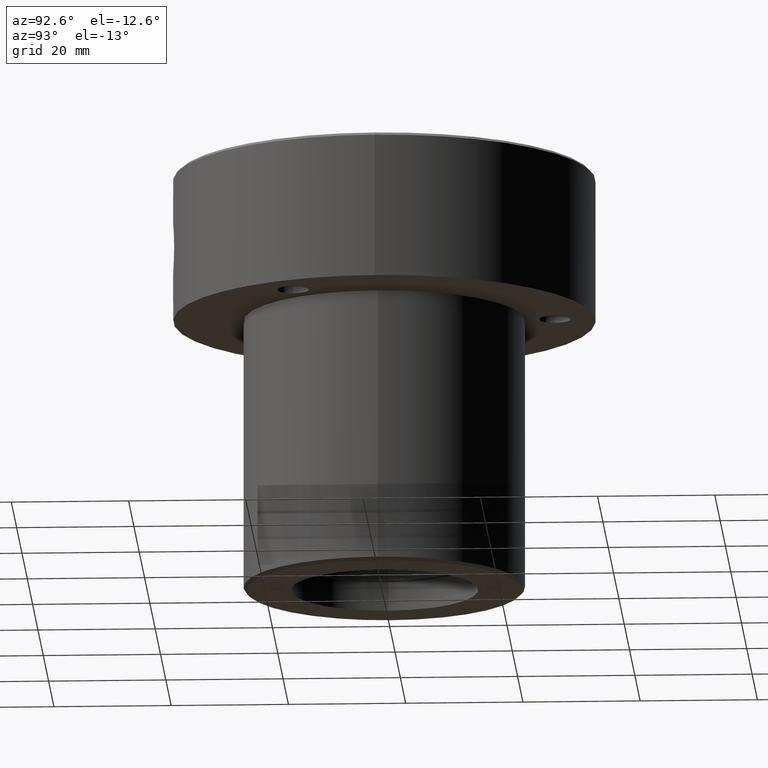
[diagram: clean part render]
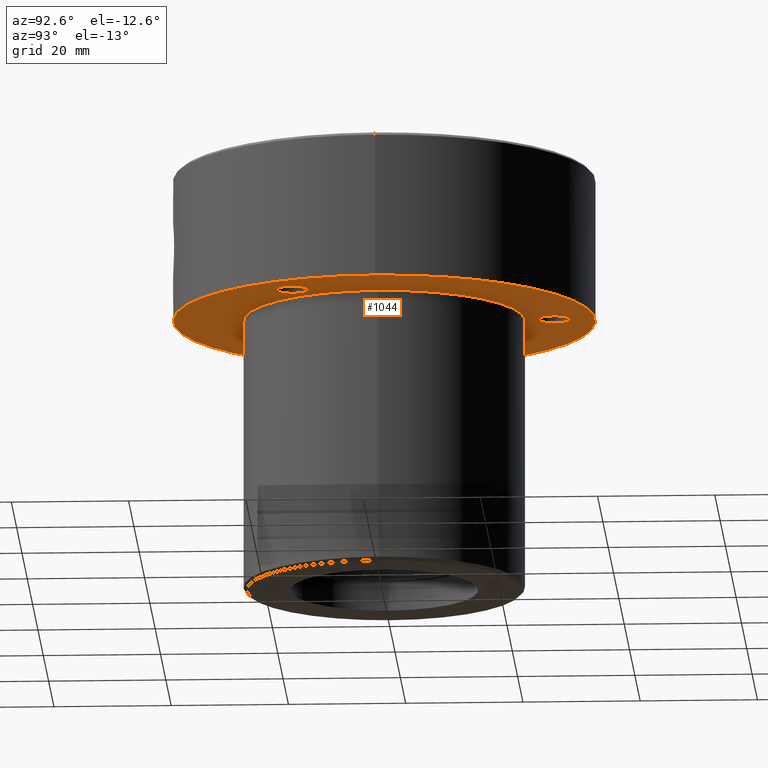
[diagram: same view with one face highlighted and labeled with its STEP entity id]
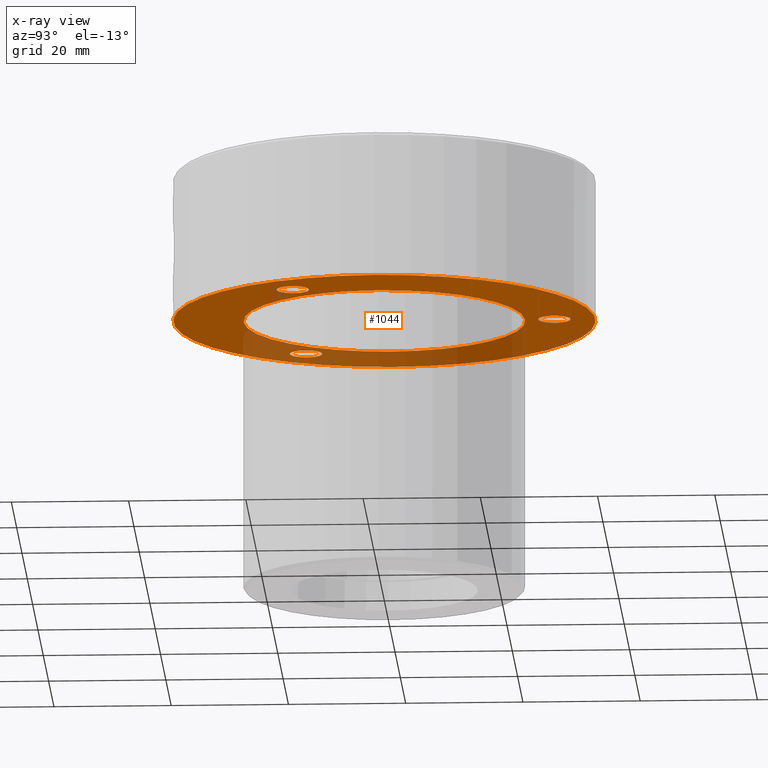
[diagram: x-ray of the same camera — body ghosted, the highlighted face saturated]
A machine part, auxiliary view. The second image highlights one B-rep face of the part: STEP entity #1044.
The next image is the same camera in x-ray: the body ghosted, the highlighted face saturated — about 30% of this face is hidden behind the body in this view.
In plain terms, the highlighted planar face has unit normal (0, 0, -1).
Its self-contained STEP definition (entity closure, byte-faithful):
#20 = EDGE_CURVE ( 'NONE', #541, #1099, #1016, .T. ) ;
#24 = DIRECTION ( 'NONE',  ( 0.000000000000000000, 0.000000000000000000, -1.000000000000000000 ) ) ;
#31 = FACE_OUTER_BOUND ( 'NONE', #257, .T. ) ;
#35 = EDGE_CURVE ( 'NONE', #1237, #1204, #174, .T. ) ;
#37 = DIRECTION ( 'NONE',  ( -0.000000000000000000, -0.000000000000000000, 1.000000000000000000 ) ) ;
#46 = ORIENTED_EDGE ( 'NONE', *, *, #380, .F. ) ;
#63 = DIRECTION ( 'NONE',  ( -1.000000000000000000, 0.000000000000000000, 0.000000000000000000 ) ) ;
#74 = CARTESIAN_POINT ( 'NONE',  ( -22.36473670974875461, -14.49999999999994316, -24.99999999999999289 ) ) ;
#87 = CIRCLE ( 'NONE', #206, 2.749999999999992006 ) ;
#100 = VERTEX_POINT ( 'NONE', #156 ) ;
#110 = FACE_BOUND ( 'NONE', #558, .T. ) ;
#121 = CARTESIAN_POINT ( 'NONE',  ( 0.000000000000000000, 0.000000000000000000, -24.99999999999999289 ) ) ;
#122 = FACE_BOUND ( 'NONE', #272, .T. ) ;
#147 = VERTEX_POINT ( 'NONE', #246 ) ;
#154 = EDGE_CURVE ( 'NONE', #1226, #1217, #291, .T. ) ;
#156 = CARTESIAN_POINT ( 'NONE',  ( -2.749999999999993783, 29.00000000000000000, -24.99999999999999289 ) ) ;
#160 = ORIENTED_EDGE ( 'NONE', *, *, #35, .F. ) ;
#174 = CIRCLE ( 'NONE', #637, 2.749999999999995559 ) ;
#181 = ORIENTED_EDGE ( 'NONE', *, *, #354, .F. ) ;
#203 = CARTESIAN_POINT ( 'NONE',  ( 27.86473670974864802, -14.50000000000011013, -24.99999999999999289 ) ) ;
#206 = AXIS2_PLACEMENT_3D ( 'NONE', #491, #487, #384 ) ;
#213 = FACE_BOUND ( 'NONE', #344, .T. ) ;
#217 = DIRECTION ( 'NONE',  ( -0.000000000000000000, -0.000000000000000000, 1.000000000000000000 ) ) ;
#229 = EDGE_CURVE ( 'NONE', #100, #147, #1013, .T. ) ;
#244 = CARTESIAN_POINT ( 'NONE',  ( -25.11473670974875105, -14.49999999999994316, -24.99999999999999289 ) ) ;
#246 = CARTESIAN_POINT ( 'NONE',  ( 2.749999999999993783, 29.00000000000000000, -24.99999999999999289 ) ) ;
#257 = EDGE_LOOP ( 'NONE', ( #422, #1025 ) ) ;
#266 = DIRECTION ( 'NONE',  ( 1.000000000000000000, 0.000000000000000000, 0.000000000000000000 ) ) ;
#272 = EDGE_LOOP ( 'NONE', ( #363, #455 ) ) ;
#291 = CIRCLE ( 'NONE', #986, 2.749999999999992006 ) ;
#313 = CARTESIAN_POINT ( 'NONE',  ( -27.86473670974874750, -14.49999999999994316, -24.99999999999999289 ) ) ;
#328 = CIRCLE ( 'NONE', #1054, 24.00000000000000000 ) ;
#344 = EDGE_LOOP ( 'NONE', ( #662, #850 ) ) ;
#347 = EDGE_CURVE ( 'NONE', #1217, #1226, #87, .T. ) ;
#354 = EDGE_CURVE ( 'NONE', #147, #100, #633, .T. ) ;
#363 = ORIENTED_EDGE ( 'NONE', *, *, #406, .T. ) ;
#373 = CIRCLE ( 'NONE', #613, 24.00000000000000000 ) ;
#380 = EDGE_CURVE ( 'NONE', #1204, #1237, #498, .T. ) ;
#384 = DIRECTION ( 'NONE',  ( -1.000000000000000000, 0.000000000000000000, 0.000000000000000000 ) ) ;
#406 = EDGE_CURVE ( 'NONE', #1149, #713, #373, .T. ) ;
#422 = ORIENTED_EDGE ( 'NONE', *, *, #20, .F. ) ;
#431 = ORIENTED_EDGE ( 'NONE', *, *, #229, .F. ) ;
#435 = AXIS2_PLACEMENT_3D ( 'NONE', #1147, #1046, #757 ) ;
#439 = DIRECTION ( 'NONE',  ( -1.000000000000000000, 0.000000000000000000, 0.000000000000000000 ) ) ;
#443 = DIRECTION ( 'NONE',  ( 0.000000000000000000, 0.000000000000000000, -1.000000000000000000 ) ) ;
#455 = ORIENTED_EDGE ( 'NONE', *, *, #985, .T. ) ;
#473 = EDGE_LOOP ( 'NONE', ( #181, #431 ) ) ;
#483 = AXIS2_PLACEMENT_3D ( 'NONE', #922, #827, #266 ) ;
#487 = DIRECTION ( 'NONE',  ( 0.000000000000000000, 0.000000000000000000, -1.000000000000000000 ) ) ;
#491 = CARTESIAN_POINT ( 'NONE',  ( 25.11473670974865868, -14.50000000000011013, -24.99999999999999289 ) ) ;
#498 = CIRCLE ( 'NONE', #1161, 2.749999999999995559 ) ;
#500 = PLANE ( 'NONE',  #1121 ) ;
#508 = DIRECTION ( 'NONE',  ( -1.000000000000000000, 0.000000000000000000, 0.000000000000000000 ) ) ;
#517 = DIRECTION ( 'NONE',  ( 1.000000000000000000, 0.000000000000000000, 0.000000000000000000 ) ) ;
#541 = VERTEX_POINT ( 'NONE', #1213 ) ;
#558 = EDGE_LOOP ( 'NONE', ( #46, #160 ) ) ;
#590 = CARTESIAN_POINT ( 'NONE',  ( -36.00000000000000000, 4.408728476930470856E-15, -24.99999999999999289 ) ) ;
#602 = CARTESIAN_POINT ( 'NONE',  ( 0.000000000000000000, 36.00000000000000000, -24.99999999999999289 ) ) ;
#612 = DIRECTION ( 'NONE',  ( 1.000000000000000000, 0.000000000000000000, 0.000000000000000000 ) ) ;
#613 = AXIS2_PLACEMENT_3D ( 'NONE', #121, #217, #796 ) ;
#633 = CIRCLE ( 'NONE', #435, 2.749999999999993783 ) ;
#637 = AXIS2_PLACEMENT_3D ( 'NONE', #244, #923, #649 ) ;
#640 = DIRECTION ( 'NONE',  ( 0.000000000000000000, 0.000000000000000000, -1.000000000000000000 ) ) ;
#649 = DIRECTION ( 'NONE',  ( -1.000000000000000000, 0.000000000000000000, 0.000000000000000000 ) ) ;
#662 = ORIENTED_EDGE ( 'NONE', *, *, #347, .F. ) ;
#667 = CARTESIAN_POINT ( 'NONE',  ( -24.00000000000000000, 2.939152317953647894E-15, -24.99999999999999289 ) ) ;
#678 = DIRECTION ( 'NONE',  ( 0.000000000000000000, 0.000000000000000000, -1.000000000000000000 ) ) ;
#706 = CARTESIAN_POINT ( 'NONE',  ( 0.000000000000000000, 0.000000000000000000, -24.99999999999999289 ) ) ;
#710 = AXIS2_PLACEMENT_3D ( 'NONE', #828, #640, #439 ) ;
#713 = VERTEX_POINT ( 'NONE', #667 ) ;
#716 = DIRECTION ( 'NONE',  ( -0.000000000000000000, -0.000000000000000000, 1.000000000000000000 ) ) ;
#757 = DIRECTION ( 'NONE',  ( -1.000000000000000000, 0.000000000000000000, 0.000000000000000000 ) ) ;
#796 = DIRECTION ( 'NONE',  ( 1.000000000000000000, 0.000000000000000000, 0.000000000000000000 ) ) ;
#797 = CARTESIAN_POINT ( 'NONE',  ( 0.000000000000000000, 0.000000000000000000, -24.99999999999999289 ) ) ;
#827 = DIRECTION ( 'NONE',  ( -0.000000000000000000, -0.000000000000000000, 1.000000000000000000 ) ) ;
#828 = CARTESIAN_POINT ( 'NONE',  ( 0.000000000000000000, 29.00000000000000000, -24.99999999999999289 ) ) ;
#850 = ORIENTED_EDGE ( 'NONE', *, *, #154, .F. ) ;
#878 = DIRECTION ( 'NONE',  ( -1.000000000000000000, 0.000000000000000000, -0.000000000000000000 ) ) ;
#922 = CARTESIAN_POINT ( 'NONE',  ( 0.000000000000000000, 0.000000000000000000, -24.99999999999999289 ) ) ;
#923 = DIRECTION ( 'NONE',  ( 0.000000000000000000, 0.000000000000000000, -1.000000000000000000 ) ) ;
#970 = CARTESIAN_POINT ( 'NONE',  ( 22.36473670974866579, -14.50000000000011013, -24.99999999999999289 ) ) ;
#984 = FACE_BOUND ( 'NONE', #473, .T. ) ;
#985 = EDGE_CURVE ( 'NONE', #713, #1149, #328, .T. ) ;
#986 = AXIS2_PLACEMENT_3D ( 'NONE', #1096, #443, #63 ) ;
#1013 = CIRCLE ( 'NONE', #710, 2.749999999999993783 ) ;
#1015 = AXIS2_PLACEMENT_3D ( 'NONE', #797, #37, #612 ) ;
#1016 = CIRCLE ( 'NONE', #483, 36.00000000000000000 ) ;
#1025 = ORIENTED_EDGE ( 'NONE', *, *, #1029, .F. ) ;
#1029 = EDGE_CURVE ( 'NONE', #1099, #541, #1036, .T. ) ;
#1036 = CIRCLE ( 'NONE', #1015, 36.00000000000000000 ) ;
#1044 = ADVANCED_FACE ( 'NONE', ( #110, #213, #984, #122, #31 ), #500, .T. ) ;
#1046 = DIRECTION ( 'NONE',  ( 0.000000000000000000, 0.000000000000000000, -1.000000000000000000 ) ) ;
#1054 = AXIS2_PLACEMENT_3D ( 'NONE', #706, #716, #517 ) ;
#1096 = CARTESIAN_POINT ( 'NONE',  ( 25.11473670974865868, -14.50000000000011013, -24.99999999999999289 ) ) ;
#1099 = VERTEX_POINT ( 'NONE', #590 ) ;
#1121 = AXIS2_PLACEMENT_3D ( 'NONE', #602, #24, #878 ) ;
#1147 = CARTESIAN_POINT ( 'NONE',  ( 0.000000000000000000, 29.00000000000000000, -24.99999999999999289 ) ) ;
#1149 = VERTEX_POINT ( 'NONE', #1153 ) ;
#1153 = CARTESIAN_POINT ( 'NONE',  ( 24.00000000000000000, 0.000000000000000000, -24.99999999999999289 ) ) ;
#1158 = CARTESIAN_POINT ( 'NONE',  ( -25.11473670974875105, -14.49999999999994316, -24.99999999999999289 ) ) ;
#1161 = AXIS2_PLACEMENT_3D ( 'NONE', #1158, #678, #508 ) ;
#1204 = VERTEX_POINT ( 'NONE', #74 ) ;
#1213 = CARTESIAN_POINT ( 'NONE',  ( 36.00000000000000000, 0.000000000000000000, -24.99999999999999289 ) ) ;
#1217 = VERTEX_POINT ( 'NONE', #203 ) ;
#1226 = VERTEX_POINT ( 'NONE', #970 ) ;
#1237 = VERTEX_POINT ( 'NONE', #313 ) ;